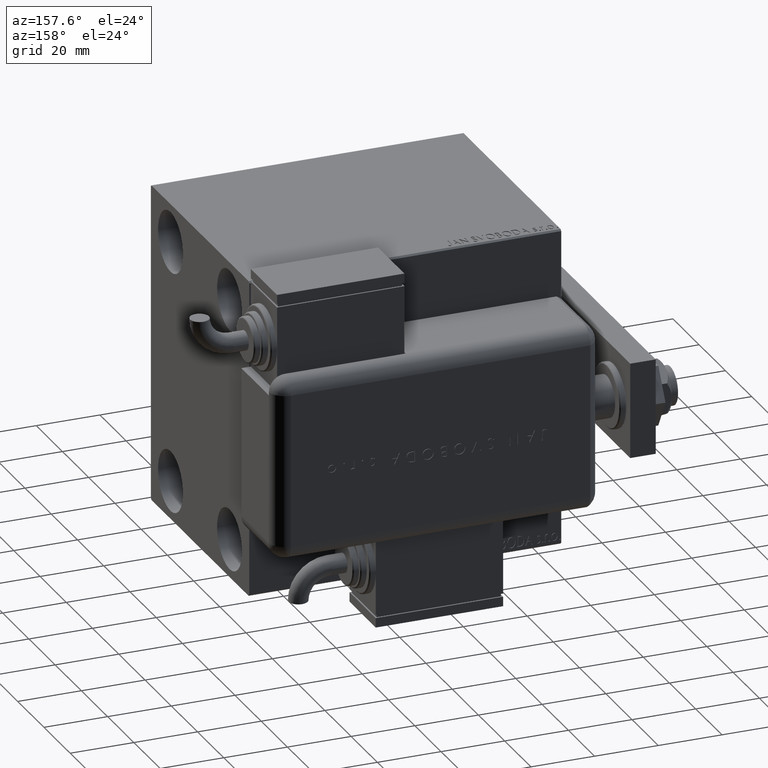
[diagram: clean part render]
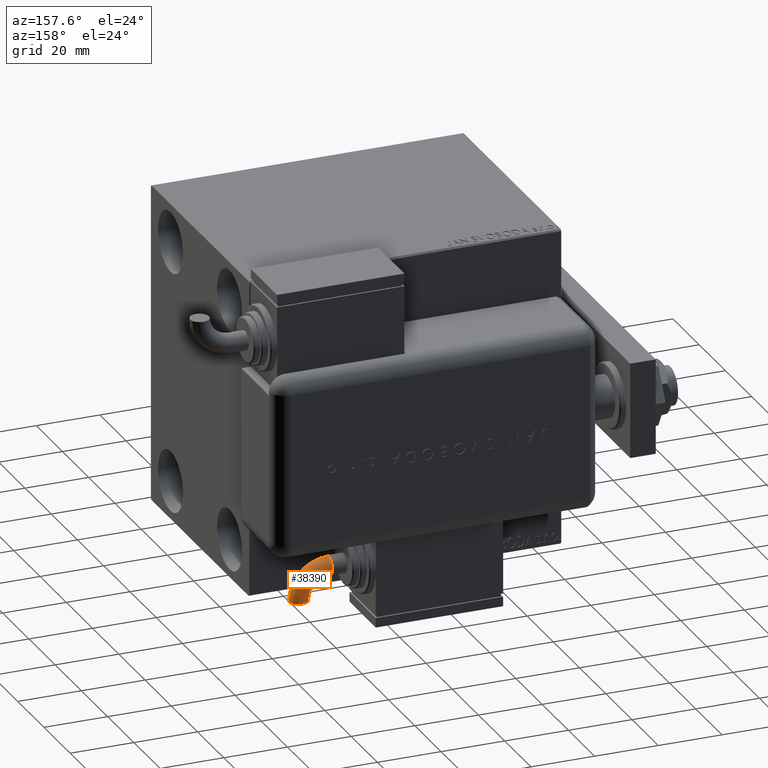
[diagram: same view with one face highlighted and labeled with its STEP entity id]
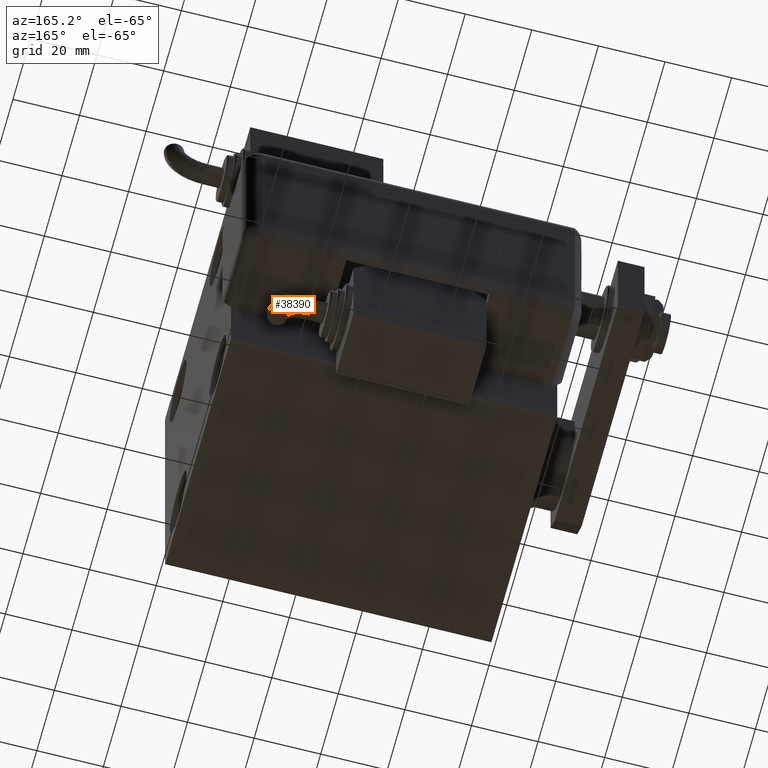
[diagram: same view with one face highlighted and labeled with its STEP entity id]
A machine part, auxiliary view. The second image highlights one B-rep face of the part: STEP entity #38390.
A second angle (auxiliary view) of the same face is appended — the face is thin or edge-on in the first view.
In plain terms, the highlighted toroidal blend (fillet) surface has major radius 9.5072 mm and minor (blend) radius 3 mm.
Its self-contained STEP definition (entity closure, byte-faithful):
#645 = ORIENTED_EDGE ( 'NONE', *, *, #53156, .F. ) ;
#1117 = EDGE_CURVE ( 'NONE', #53646, #52996, #48756, .T. ) ;
#3988 = CARTESIAN_POINT ( 'NONE',  ( -30.75201677704342274, -9.507211519273942812, 0.000000000000000000 ) ) ;
#4084 = CIRCLE ( 'NONE', #57010, 12.50721151927396058 ) ;
#4295 = VERTEX_POINT ( 'NONE', #23172 ) ;
#7671 = ORIENTED_EDGE ( 'NONE', *, *, #43930, .F. ) ;
#11335 = CARTESIAN_POINT ( 'NONE',  ( -40.25922829605691078, -9.507281895111381331, 0.000000000000000000 ) ) ;
#12943 = CIRCLE ( 'NONE', #33110, 2.999999999999996891 ) ;
#13857 = DIRECTION ( 'NONE',  ( 0.000000000000000000, 0.000000000000000000, 1.000000000000000000 ) ) ;
#14609 = DIRECTION ( 'NONE',  ( 1.000000000000000000, 0.000000000000000000, 0.000000000000000000 ) ) ;
#15193 = EDGE_CURVE ( 'NONE', #38444, #4295, #4084, .T. ) ;
#17383 = DIRECTION ( 'NONE',  ( -1.156482317317872908E-15, 1.000000000000000000, 0.000000000000000000 ) ) ;
#18667 = CARTESIAN_POINT ( 'NONE',  ( -30.75201677704342274, -9.507211519273942812, 0.000000000000000000 ) ) ;
#19849 = AXIS2_PLACEMENT_3D ( 'NONE', #51687, #55897, #14609 ) ;
#22363 = DIRECTION ( 'NONE',  ( 0.000000000000000000, 0.000000000000000000, 1.000000000000000000 ) ) ;
#22817 = TOROIDAL_SURFACE ( 'NONE', #30596, 9.507211519273964129, 2.999999999999996891 ) ;
#23172 = CARTESIAN_POINT ( 'NONE',  ( -43.25922829597471519, -9.507304102202486007, 0.000000000000000000 ) ) ;
#24055 = EDGE_CURVE ( 'NONE', #4295, #52996, #12943, .T. ) ;
#25199 = DIRECTION ( 'NONE',  ( -7.402363701065945741E-06, 0.9999999999726024713, 0.000000000000000000 ) ) ;
#27135 = AXIS2_PLACEMENT_3D ( 'NONE', #40589, #36075, #17383 ) ;
#27163 = FACE_OUTER_BOUND ( 'NONE', #51192, .T. ) ;
#27494 = DIRECTION ( 'NONE',  ( 1.000000000000000000, 0.000000000000000000, 0.000000000000000000 ) ) ;
#30544 = ORIENTED_EDGE ( 'NONE', *, *, #15193, .T. ) ;
#30596 = AXIS2_PLACEMENT_3D ( 'NONE', #18667, #13857, #31385 ) ;
#31385 = DIRECTION ( 'NONE',  ( 1.000000000000000000, 0.000000000000000000, 0.000000000000000000 ) ) ;
#31392 = CARTESIAN_POINT ( 'NONE',  ( -30.75201677704342274, 2.081668171172168513E-14, 0.000000000000000000 ) ) ;
#31972 = DIRECTION ( 'NONE',  ( 1.000000000000000000, 1.025520576932673761E-15, 0.000000000000000000 ) ) ;
#32547 = CARTESIAN_POINT ( 'NONE',  ( -30.75201677704342629, 3.000000000000017319, 0.000000000000000000 ) ) ;
#32552 = DIRECTION ( 'NONE',  ( -1.156482317317872908E-15, 1.000000000000000000, 0.000000000000000000 ) ) ;
#33110 = AXIS2_PLACEMENT_3D ( 'NONE', #11335, #25199, #48113 ) ;
#33320 = CARTESIAN_POINT ( 'NONE',  ( -30.75201677704342274, 2.081668171172168829E-14, 2.999999999999997335 ) ) ;
#35185 = CARTESIAN_POINT ( 'NONE',  ( -37.25922829613910636, -9.507259688020280208, -3.673940397551225891E-16 ) ) ;
#36075 = DIRECTION ( 'NONE',  ( 1.000000000000000000, 1.025520576932673761E-15, 0.000000000000000000 ) ) ;
#38390 = ADVANCED_FACE ( 'NONE', ( #27163 ), #22817, .T. ) ;
#38444 = VERTEX_POINT ( 'NONE', #32547 ) ;
#39418 = AXIS2_PLACEMENT_3D ( 'NONE', #31392, #31972, #32552 ) ;
#40589 = CARTESIAN_POINT ( 'NONE',  ( -30.75201677704342274, 2.081668171172168513E-14, 0.000000000000000000 ) ) ;
#43930 = EDGE_CURVE ( 'NONE', #51135, #53646, #45213, .T. ) ;
#45213 = CIRCLE ( 'NONE', #39418, 2.999999999999996003 ) ;
#47411 = CARTESIAN_POINT ( 'NONE',  ( -30.75201677704341918, -2.999999999999976463, -3.673940397442056910E-16 ) ) ;
#48113 = DIRECTION ( 'NONE',  ( -0.9999999999726024713, -7.402363701169985951E-06, 0.000000000000000000 ) ) ;
#48756 = CIRCLE ( 'NONE', #19849, 6.507211519273966793 ) ;
#49991 = ORIENTED_EDGE ( 'NONE', *, *, #1117, .F. ) ;
#51135 = VERTEX_POINT ( 'NONE', #33320 ) ;
#51174 = ORIENTED_EDGE ( 'NONE', *, *, #24055, .T. ) ;
#51192 = EDGE_LOOP ( 'NONE', ( #645, #30544, #51174, #49991, #7671 ) ) ;
#51687 = CARTESIAN_POINT ( 'NONE',  ( -30.75201677704342274, -9.507211519273942812, -3.673940397442055924E-16 ) ) ;
#52996 = VERTEX_POINT ( 'NONE', #35185 ) ;
#53156 = EDGE_CURVE ( 'NONE', #38444, #51135, #57903, .T. ) ;
#53646 = VERTEX_POINT ( 'NONE', #47411 ) ;
#55897 = DIRECTION ( 'NONE',  ( 0.000000000000000000, 0.000000000000000000, 1.000000000000000000 ) ) ;
#57010 = AXIS2_PLACEMENT_3D ( 'NONE', #3988, #22363, #27494 ) ;
#57903 = CIRCLE ( 'NONE', #27135, 2.999999999999996003 ) ;